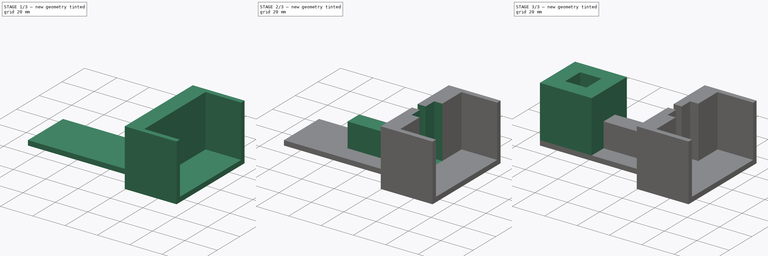
[diagram: build sequence overview — one tinted view per stage of 3, left to right]
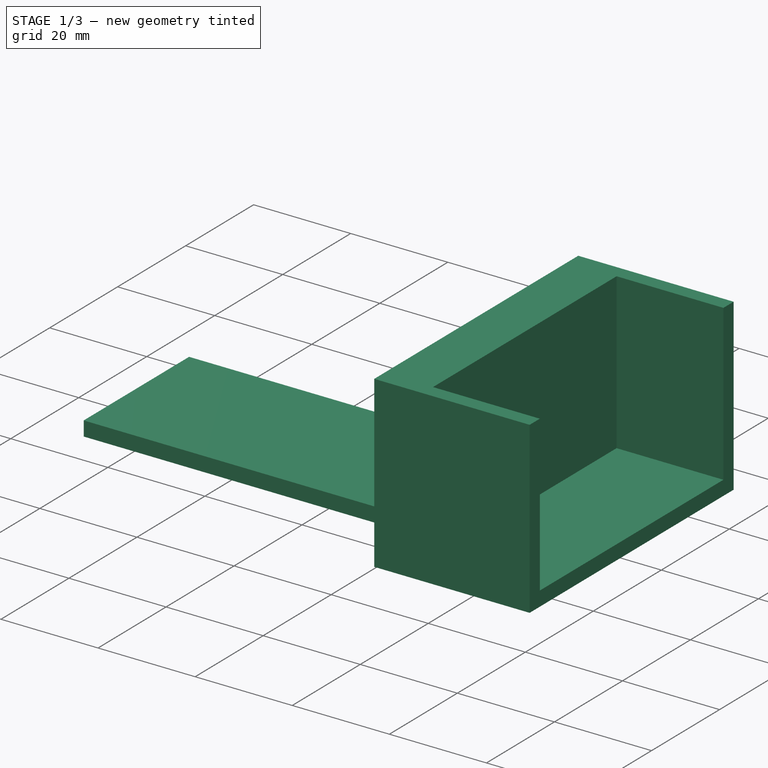
[diagram: stage 1 of 3 — iso view after this stage's code; geometry added in this stage tinted green]
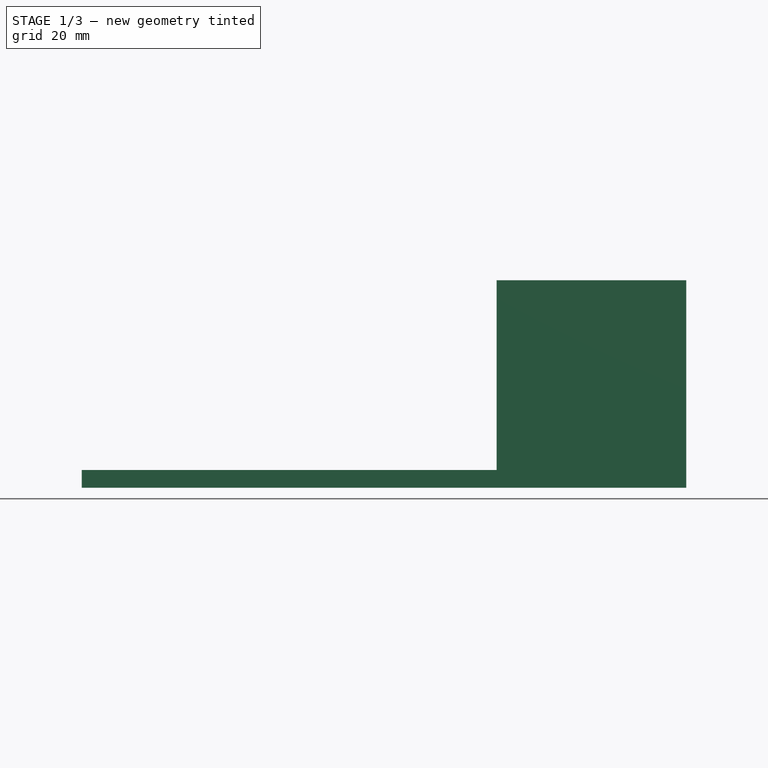
[diagram: stage 1 of 3 — front view after this stage's code; geometry added in this stage tinted green]
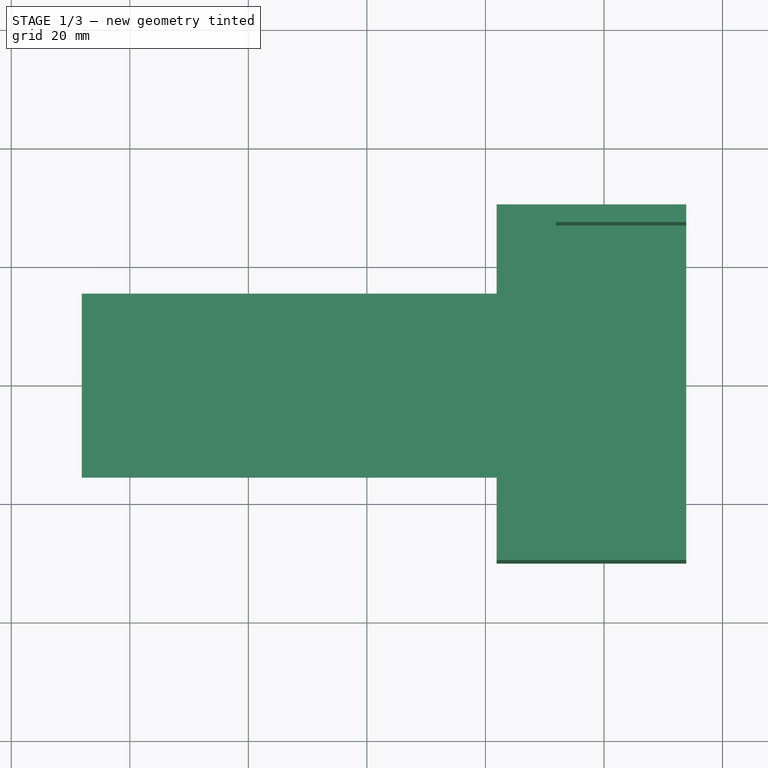
[diagram: stage 1 of 3 — top view after this stage's code; geometry added in this stage tinted green]
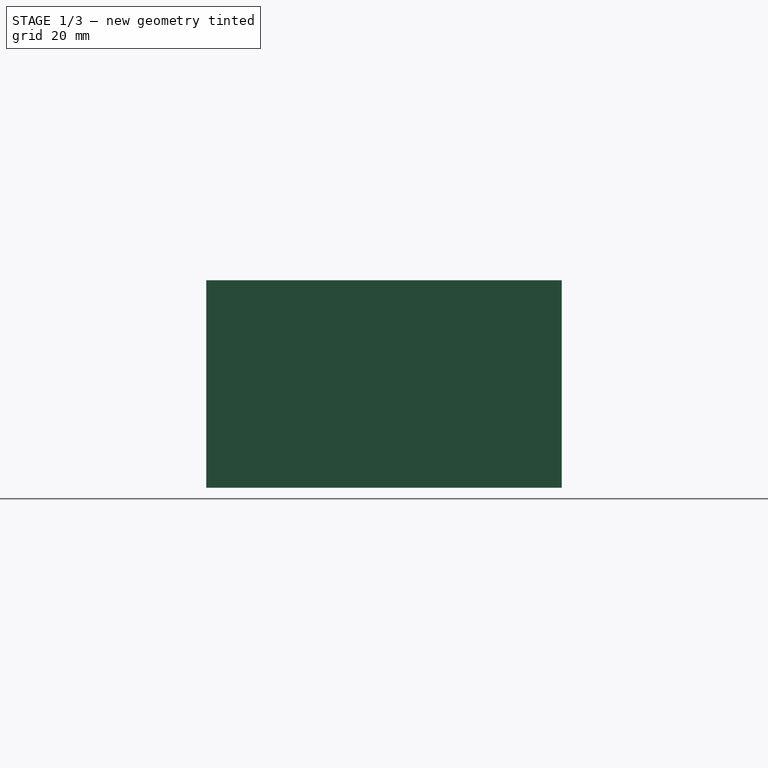
[diagram: stage 1 of 3 — right view after this stage's code; geometry added in this stage tinted green]
FCSTD DOCUMENT  (FreeCAD 0.21R33694 (Git))
Label: Frame
License: All rights reserved
LicenseURL: http://en.wikipedia.org/wiki/All_rights_reserved
objects: Sketcher::SketchObject×8, PartDesign::Pad×4, PartDesign::Pocket×4, Spreadsheet::Sheet×1, PartDesign::Body×1
note: 25 computed .brp shape members not serialized (recipe doc carries the construction recipe); baked Part::Feature solids carry a one-line shape summary decoded from their .brp

FEATURE [Spreadsheet::Sheet] Spreadsheet
  cells = A1='d_MagMag; B1(d_MagMag)==7 cm; A2='test_mag_side; B2(tms)==12 mm; A3='tollerance (%); B3(tl)=10
FEATURE [Sketcher::SketchObject] Sketch
  FullyConstrained = false
  MapMode = 5
  Support = -> [XY_Plane]
  expr: Constraints[13] = -Spreadsheet.tms / 2
  expr: Constraints[3] = Spreadsheet.d_MagMag + Spreadsheet.tms + 10 mm + 10 mm
  expr: Constraints[7] = Spreadsheet.tms / 2 + 10 mm
  expr: Constraints[9] = Spreadsheet.d_MagMag
  sketch-geometry (13):
    g0: LineSegment StartX=-48.1158 StartY=15.5 StartZ=0 EndX=21.8842 EndY=15.5 EndZ=0
    g1: LineSegment StartX=53.8842 StartY=15.5 StartZ=0 EndX=53.8842 EndY=-15.5 EndZ=0
    g2: LineSegment StartX=-48.1158 StartY=-15.5 StartZ=0 EndX=-48.1158 EndY=15.5 EndZ=0
    g3: GeomPoint X=-32.1158 Y=0 Z=0
    g4: GeomPoint X=37.8842 Y=0 Z=0
    g5: GeomPoint X=47.8842 Y=0 Z=0
    g6: LineSegment StartX=31.8842 StartY=24.4366 StartZ=0 EndX=31.8842 EndY=-24.4366 EndZ=0
    g7: LineSegment StartX=21.8842 StartY=30 StartZ=0 EndX=53.8842 EndY=30 EndZ=0
    g8: LineSegment StartX=53.8842 StartY=30 StartZ=0 EndX=53.8842 EndY=-30 EndZ=0
    g9: LineSegment StartX=53.8842 StartY=-30 StartZ=0 EndX=21.8842 EndY=-30 EndZ=0
    g10: LineSegment StartX=21.8842 StartY=-30 StartZ=0 EndX=21.8842 EndY=-15.5 EndZ=0
    g11: LineSegment StartX=21.8842 StartY=-15.5 StartZ=0 EndX=-48.1158 EndY=-15.5 EndZ=0
    g12: LineSegment StartX=21.8842 StartY=15.5 StartZ=0 EndX=21.8842 EndY=30 EndZ=0
  constraints (31):
    c: Coincident(g11,g2)
    c: Coincident(g2,g0)
    c: Vertical(g1)
    c: DistanceX(g0,g1) = 102
    c: DistanceY(g2,g2) = 31
    c: Symmetric(g11,g0,g-1)
    c: PointOnObject(g3,g-1)
    c: DistanceX(g0,g3) = 16
    c: PointOnObject(g4,g-1)
    c: DistanceX(g3,g4) = 70
    c: PointOnObject(g5,g-1)
    c: DistanceX(g4,g5) = 10
    c: Symmetric(g6,g6,g-1)
    c: DistanceX(g4,g6) = -6
    c: Coincident(g7,g8)
    c: Coincident(g8,g9)
    c: Coincident(g9,g10)
    c: Coincident(g12,g7)
    c: Horizontal(g7)
    c: Horizontal(g9)
    c: Vertical(g8)
    c: Symmetric(g7,g9,g-1)
    c: DistanceY(g10,g12) = 60
    c: DistanceX(g7,g6) = 10
    c: DistanceX(g1,g7) = 0
    c: Coincident(g10,g11)
    c: Coincident(g12,g0)
    c: Perpendicular(g12,g0)
    c: Perpendicular(g11,g10)
    c: Perpendicular(g10,g9)
    c: Perpendicular(g7,g12)
FEATURE [PartDesign::Pad] Pad
  Direction = (0,0,1)
  Length = 3
  Length2 = 10
  Profile = -> Sketch
  ReferenceAxis = -> Sketch [N_Axis]
  Type = 0
FEATURE [Sketcher::SketchObject] Sketch001
  ExternalGeometry = -> [Pad]
  FullyConstrained = true
  MapMode = 5
  Placement = pos=(0,0,3) rot=(0,0,1;0rad)
  Support = -> [Pad]
  sketch-geometry (4):
    g0: LineSegment StartX=21.8842 StartY=30 StartZ=0 EndX=53.8842 EndY=30 EndZ=0
    g1: LineSegment StartX=53.8842 StartY=30 StartZ=0 EndX=53.8842 EndY=-30 EndZ=0
    g2: LineSegment StartX=53.8842 StartY=-30 StartZ=0 EndX=21.8842 EndY=-30 EndZ=0
    g3: LineSegment StartX=21.8842 StartY=-30 StartZ=0 EndX=21.8842 EndY=30 EndZ=0
  constraints (10):
    c: Coincident(g0,g1)
    c: Coincident(g1,g2)
    c: Coincident(g2,g3)
    c: Coincident(g3,g0)
    c: Horizontal(g0)
    c: Horizontal(g2)
    c: Vertical(g1)
    c: Vertical(g3)
    c: Coincident(g0,g-4)
    c: Coincident(g1,g-6)
FEATURE [PartDesign::Pad] Pad001
  BaseFeature = -> Pad
  Direction = (0,0,1)
  Length = 32
  Length2 = 10
  Profile = -> Sketch001
  ReferenceAxis = -> Sketch001 [N_Axis]
  Type = 0
FEATURE [Sketcher::SketchObject] Sketch002
  ExternalGeometry = -> [Pad001]
  FullyConstrained = true
  MapMode = 5
  Placement = pos=(0,0,35) rot=(0,0,1;0rad)
  Support = -> [Pad001]
  sketch-geometry (4):
    g0: LineSegment StartX=53.8842 StartY=27 StartZ=0 EndX=31.8842 EndY=27 EndZ=0
    g1: LineSegment StartX=31.8842 StartY=27 StartZ=0 EndX=31.8842 EndY=-27 EndZ=0
    g2: LineSegment StartX=31.8842 StartY=-27 StartZ=0 EndX=53.8842 EndY=-27 EndZ=0
    g3: LineSegment StartX=53.8842 StartY=-27 StartZ=0 EndX=53.8842 EndY=27 EndZ=0
  constraints (12):
    c: Coincident(g0,g1)
    c: Coincident(g1,g2)
    c: Coincident(g2,g3)
    c: Coincident(g3,g0)
    c: Horizontal(g0)
    c: Horizontal(g2)
    c: Vertical(g1)
    c: Vertical(g3)
    c: PointOnObject(g0,g-7)
    c: DistanceY(g0,g-5) = 3
    c: DistanceY(g-8,g1) = 3
    c: DistanceX(g-8,g1) = 10
FEATURE [PartDesign::Pocket] Pocket
  BaseFeature = -> Pad001
  Direction = (0,0,-1)
  Length = 32
  Length2 = 5
  Profile = -> Sketch002
  ReferenceAxis = -> Sketch002 [N_Axis]
  Type = 0
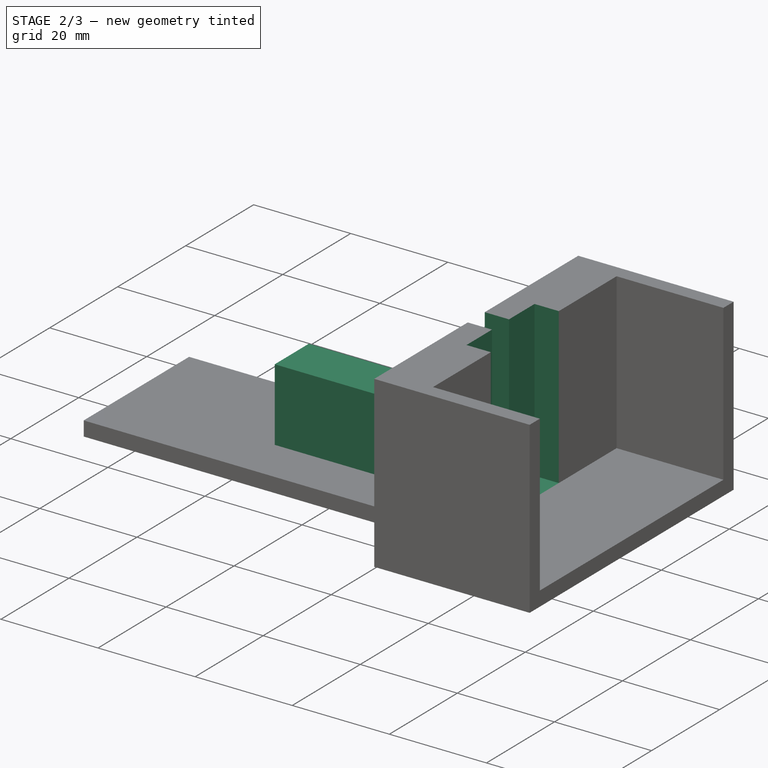
[diagram: stage 2 of 3 — iso view after this stage's code; geometry added in this stage tinted green]
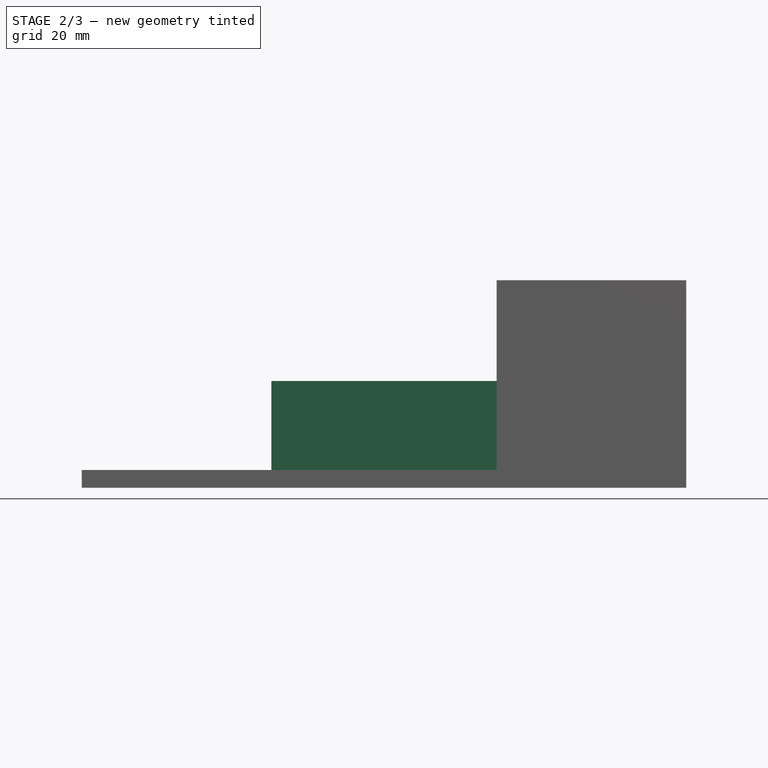
[diagram: stage 2 of 3 — front view after this stage's code; geometry added in this stage tinted green]
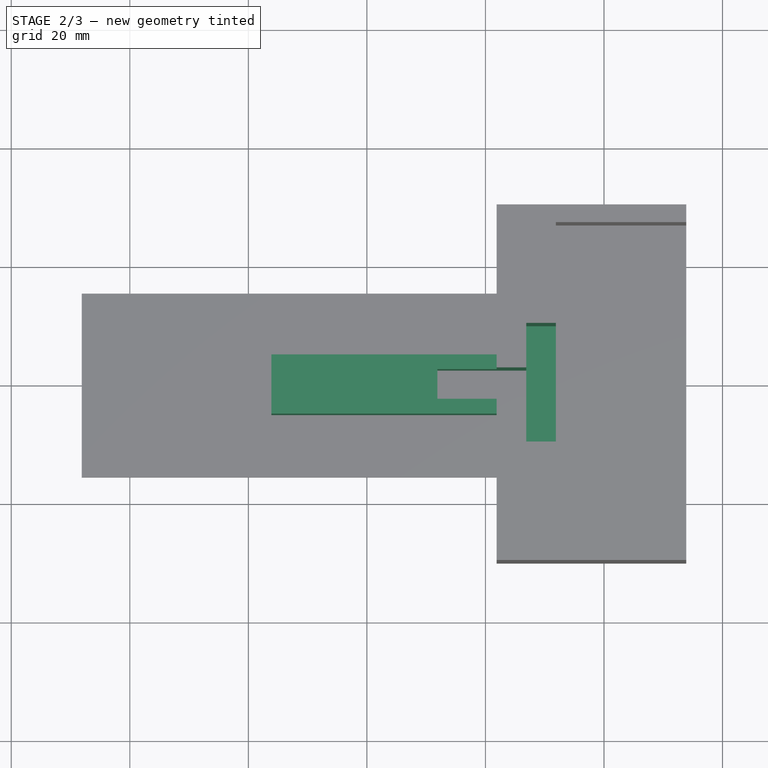
[diagram: stage 2 of 3 — top view after this stage's code; geometry added in this stage tinted green]
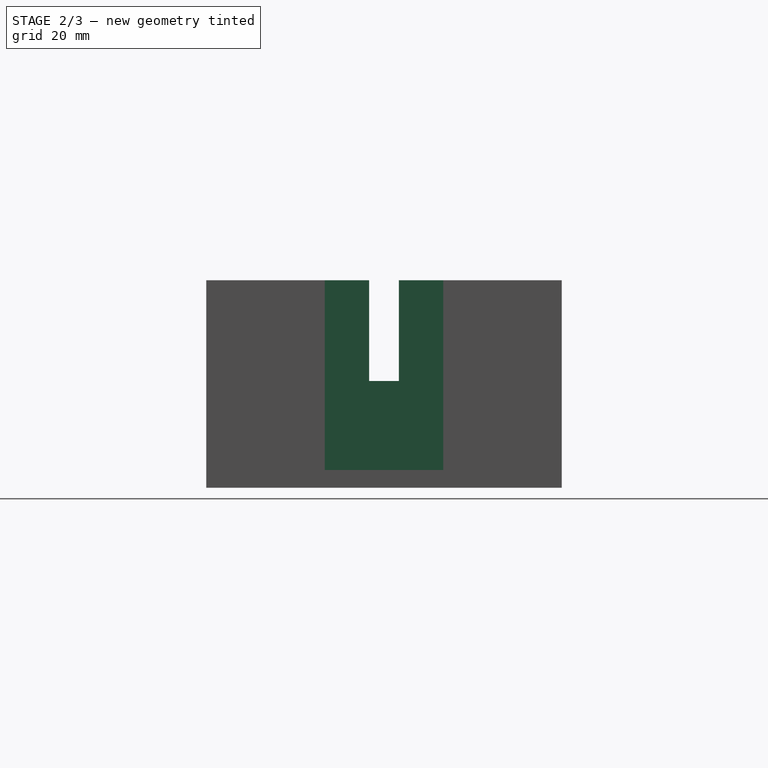
[diagram: stage 2 of 3 — right view after this stage's code; geometry added in this stage tinted green]
FEATURE [Sketcher::SketchObject] Sketch003
  ExternalGeometry = -> [Pocket]
  FullyConstrained = true
  MapMode = 5
  Placement = pos=(0,0,3) rot=(0,0,1;0rad)
  Support = -> [Pocket]
  expr: Constraints[6] = 20 mm + Spreadsheet.tms
  sketch-geometry (4):
    g0: LineSegment StartX=21.8842 StartY=5 StartZ=0 EndX=-16.1158 EndY=5 EndZ=0
    g1: LineSegment StartX=-16.1158 StartY=5 StartZ=0 EndX=-16.1158 EndY=-5 EndZ=0
    g2: LineSegment StartX=-16.1158 StartY=-5 StartZ=0 EndX=21.8842 EndY=-5 EndZ=0
    g3: LineSegment StartX=21.8842 StartY=5 StartZ=0 EndX=21.8842 EndY=-5 EndZ=0
  constraints (11):
    c: Coincident(g0,g1)
    c: Coincident(g1,g2)
    c: Horizontal(g0)
    c: Horizontal(g2)
    c: Symmetric(g0,g1,g-1)
    c: DistanceY(g1,g1) = 10
    c: DistanceX(g-4,g0) = 32
    c: Coincident(g3,g0)
    c: Coincident(g3,g2)
    c: Vertical(g3)
    c: DistanceX(g0,g-5) = 0
FEATURE [PartDesign::Pad] Pad002
  BaseFeature = -> Pocket
  Direction = (0,0,1)
  Length = 15
  Length2 = 10
  Profile = -> Sketch003
  ReferenceAxis = -> Sketch003 [N_Axis]
  Type = 0
FEATURE [Sketcher::SketchObject] Sketch004
  ExternalGeometry = -> [Pad002]
  FullyConstrained = true
  MapMode = 5
  Placement = pos=(0,0,35) rot=(0,0,1;0rad)
  Support = -> [Pad002]
  expr: Constraints[13] = Spreadsheet.tms + 8 mm
  sketch-geometry (8):
    g0: LineSegment StartX=31.8842 StartY=10 StartZ=0 EndX=31.8842 EndY=-10 EndZ=0
    g1: LineSegment StartX=31.8842 StartY=-10 StartZ=0 EndX=26.8842 EndY=-10 EndZ=0
    g2: LineSegment StartX=26.8842 StartY=-10 StartZ=0 EndX=26.8842 EndY=-2.5 EndZ=0
    g3: LineSegment StartX=26.8842 StartY=-2.5 StartZ=0 EndX=11.8842 EndY=-2.5 EndZ=0
    g4: LineSegment StartX=11.8842 StartY=-2.5 StartZ=0 EndX=11.8842 EndY=2.5 EndZ=0
    g5: LineSegment StartX=11.8842 StartY=2.5 StartZ=0 EndX=26.8842 EndY=2.5 EndZ=0
    g6: LineSegment StartX=26.8842 StartY=2.5 StartZ=0 EndX=26.8842 EndY=10 EndZ=0
    g7: LineSegment StartX=26.8842 StartY=10 StartZ=0 EndX=31.8842 EndY=10 EndZ=0
  constraints (22):
    c: PointOnObject(g0,g-3)
    c: Coincident(g1,g0)
    c: Horizontal(g1)
    c: Coincident(g2,g1)
    c: Vertical(g2)
    c: Coincident(g3,g2)
    c: Horizontal(g3)
    c: Coincident(g4,g3)
    c: Horizontal(g5)
    c: Coincident(g6,g5)
    c: Vertical(g6)
    c: Coincident(g7,g6)
    c: Coincident(g0,g7)
    c: DistanceY(g0,g0) = 20
    c: DistanceX(g1,g1) = 5
    c: Perpendicular(g0,g7)
    c: DistanceX(g7,g7) = 5
    c: Coincident(g4,g5)
    c: DistanceY(g4,g4) = 5
    c: Symmetric(g0,g0,g-1)
    c: Symmetric(g3,g4,g-1)
    c: DistanceX(g5,g5) = 15
FEATURE [PartDesign::Pocket] Pocket001
  BaseFeature = -> Pad002
  Direction = (0,0,-1)
  Length = 0
  Length2 = 5
  Profile = -> Sketch004
  ReferenceAxis = -> Sketch004 [N_Axis]
  Type = 3
  UpToFace = -> Pad002 [Face20]
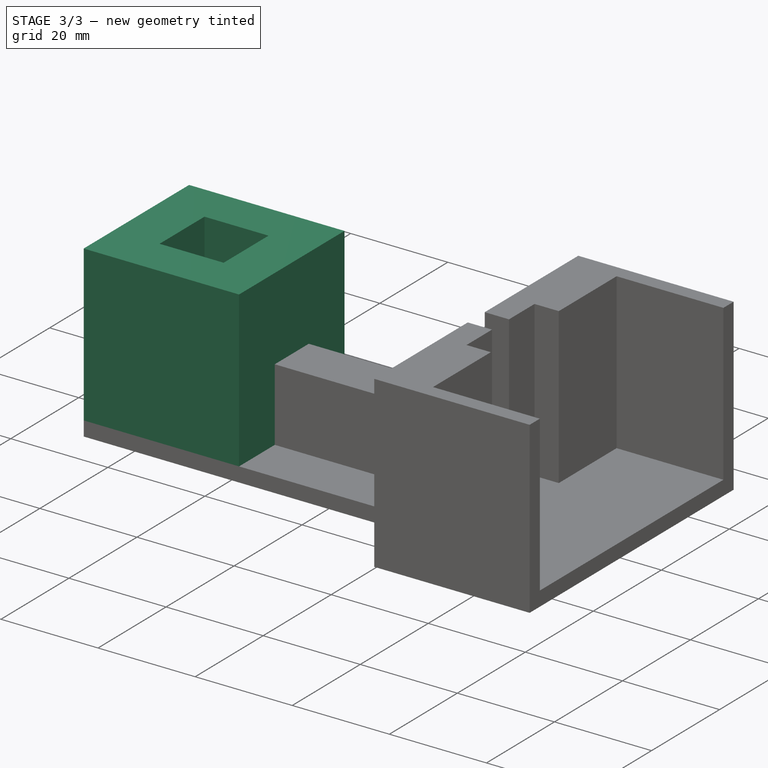
[diagram: stage 3 of 3 — iso view after this stage's code; geometry added in this stage tinted green]
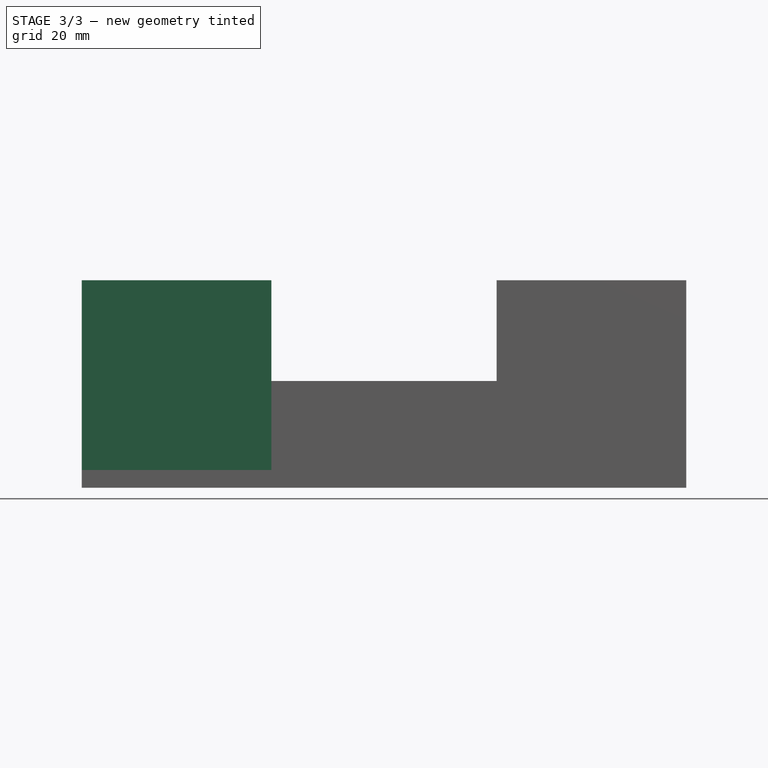
[diagram: stage 3 of 3 — front view after this stage's code; geometry added in this stage tinted green]
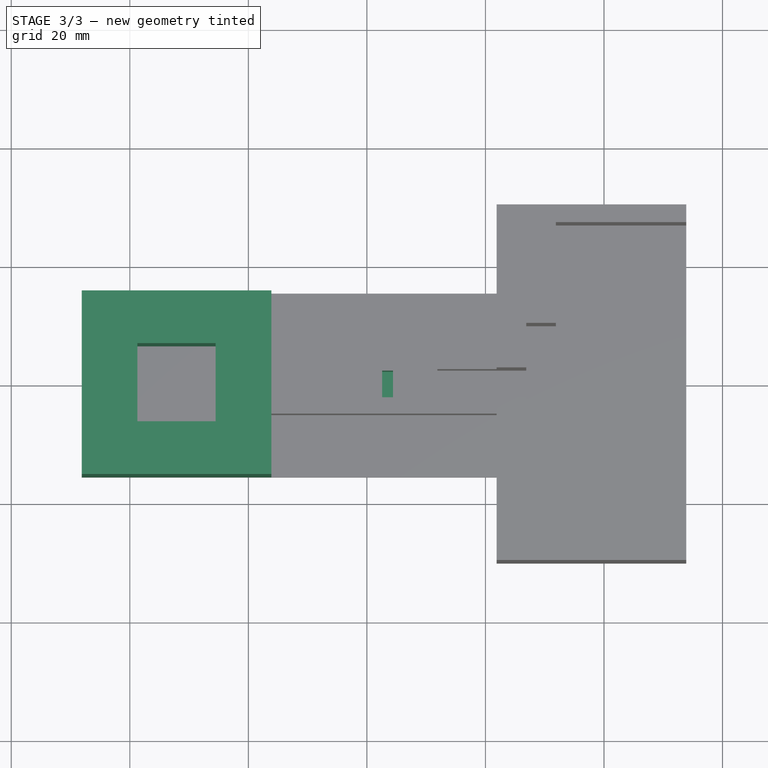
[diagram: stage 3 of 3 — top view after this stage's code; geometry added in this stage tinted green]
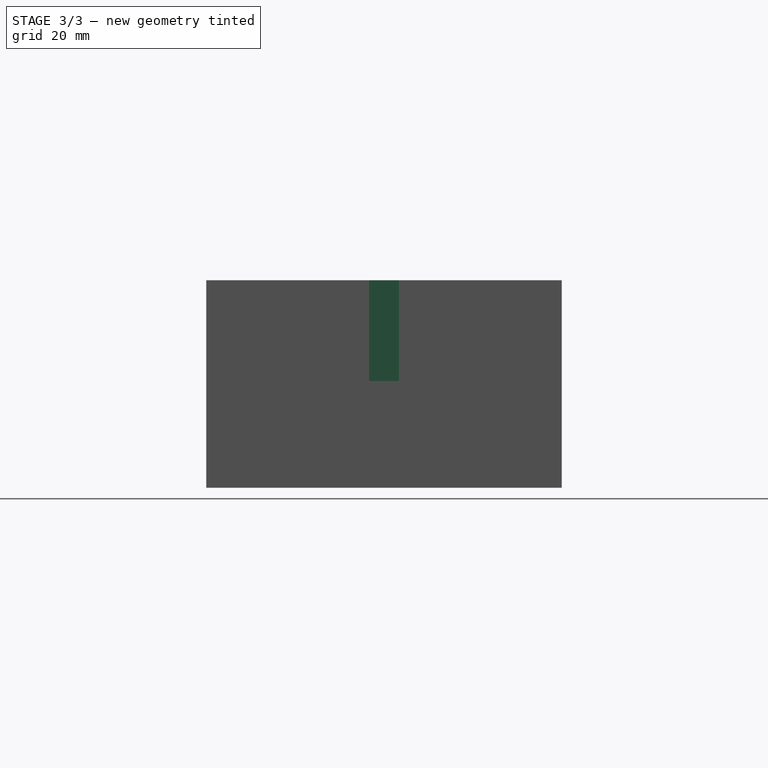
[diagram: stage 3 of 3 — right view after this stage's code; geometry added in this stage tinted green]
FEATURE [Sketcher::SketchObject] Sketch005
  ExternalGeometry = -> [Pocket001]
  FullyConstrained = true
  MapMode = 5
  Placement = pos=(0,0,3) rot=(0,0,1;0rad)
  Support = -> [Pocket001]
  sketch-geometry (4):
    g0: LineSegment StartX=-48.1158 StartY=15.5 StartZ=0 EndX=-16.1158 EndY=15.5 EndZ=0
    g1: LineSegment StartX=-16.1158 StartY=15.5 StartZ=0 EndX=-16.1158 EndY=-15.5 EndZ=0
    g2: LineSegment StartX=-16.1158 StartY=-15.5 StartZ=0 EndX=-48.1158 EndY=-15.5 EndZ=0
    g3: LineSegment StartX=-48.1158 StartY=-15.5 StartZ=0 EndX=-48.1158 EndY=15.5 EndZ=0
  constraints (11):
    c: Coincident(g0,g1)
    c: Coincident(g1,g2)
    c: Coincident(g2,g3)
    c: Coincident(g3,g0)
    c: Horizontal(g0)
    c: Horizontal(g2)
    c: Vertical(g1)
    c: Vertical(g3)
    c: Coincident(g0,g-6)
    c: PointOnObject(g1,g-4)
    c: DistanceX(g-3,g1) = 0
FEATURE [PartDesign::Pad] Pad003
  BaseFeature = -> Pocket001
  Direction = (0,0,1)
  Length = 32
  Length2 = 10
  Profile = -> Sketch005
  ReferenceAxis = -> Sketch005 [N_Axis]
  Type = 0
FEATURE [Sketcher::SketchObject] Sketch006
  ExternalGeometry = -> [Pad003]
  FullyConstrained = false
  MapMode = 5
  Placement = pos=(0,0,35) rot=(0,0,1;0rad)
  Support = -> [Pad003]
  expr: Constraints[11] = Spreadsheet.tms * (1 + Spreadsheet.tl / 100)
  expr: Constraints[12] = Spreadsheet.tms * (1 + Spreadsheet.tl / 100)
  sketch-geometry (5):
    g0: LineSegment StartX=-38.7158 StartY=6.6 StartZ=0 EndX=-25.5158 EndY=6.6 EndZ=0
    g1: LineSegment StartX=-25.5158 StartY=6.6 StartZ=0 EndX=-25.5158 EndY=-6.6 EndZ=0
    g2: LineSegment StartX=-25.5158 StartY=-6.6 StartZ=0 EndX=-38.7158 EndY=-6.6 EndZ=0
    g3: LineSegment StartX=-38.7158 StartY=-6.6 StartZ=0 EndX=-38.7158 EndY=6.6 EndZ=0
    g4: LineSegment StartX=-32.1158 StartY=33.3613 StartZ=0 EndX=-32.1158 EndY=-33.3613 EndZ=0
  constraints (13):
    c: Coincident(g0,g1)
    c: Coincident(g1,g2)
    c: Coincident(g2,g3)
    c: Coincident(g3,g0)
    c: Horizontal(g0)
    c: Horizontal(g2)
    c: Vertical(g3)
    c: Symmetric(g4,g4,g-1)
    c: Symmetric(g-7,g-7,g4)
    c: Symmetric(g0,g0,g4)
    c: Symmetric(g0,g1,g-1)
    c: DistanceX(g0,g0) = 13.2
    c: DistanceY(g1,g1) = 13.2
FEATURE [PartDesign::Pocket] Pocket002
  BaseFeature = -> Pad003
  Direction = (0,0,-1)
  Length = 32
  Length2 = 5
  Profile = -> Sketch006
  ReferenceAxis = -> Sketch006 [N_Axis]
  Type = 0
FEATURE [Sketcher::SketchObject] Sketch007
  ExternalGeometry = -> [Pocket002]
  FullyConstrained = false
  MapMode = 5
  Placement = pos=(0,0,18) rot=(0,0,1;0rad)
  Support = -> [Pocket002]
  expr: Constraints[10] = 4.09 mm * (1 + Spreadsheet.tl / 100)
  expr: Constraints[11] = 1.68 mm * (1 + Spreadsheet.tl / 100)
  expr: Constraints[1] = 35 mm - Spreadsheet.tms / 2
  sketch-geometry (5):
    g0: LineSegment StartX=3.48417 StartY=27.0868 StartZ=0 EndX=3.48417 EndY=-27.0868 EndZ=0
    g1: LineSegment StartX=2.56017 StartY=2.2495 StartZ=0 EndX=4.40817 EndY=2.2495 EndZ=0
    g2: LineSegment StartX=4.40817 StartY=2.2495 StartZ=0 EndX=4.40817 EndY=-2.2495 EndZ=0
    g3: LineSegment StartX=4.40817 StartY=-2.2495 StartZ=0 EndX=2.56017 EndY=-2.2495 EndZ=0
    g4: LineSegment StartX=2.56017 StartY=-2.2495 StartZ=0 EndX=2.56017 EndY=2.2495 EndZ=0
  constraints (12):
    c: Symmetric(g0,g0,g-1)
    c: DistanceX(g-3,g0) = 29
    c: Coincident(g1,g2)
    c: Coincident(g2,g3)
    c: Coincident(g3,g4)
    c: Coincident(g4,g1)
    c: Horizontal(g3)
    c: Vertical(g4)
    c: Symmetric(g1,g1,g0)
    c: Symmetric(g2,g1,g-1)
    c: DistanceY(g2,g2) = 4.499
    c: DistanceX(g1,g1) = 1.848
FEATURE [PartDesign::Pocket] Pocket003
  BaseFeature = -> Pocket002
  Direction = (0,0,-1)
  Length = 10.55
  Length2 = 5
  Profile = -> Sketch007
  ReferenceAxis = -> Sketch007 [N_Axis]
  Type = 0
  expr: Length = 15 mm - 6 mm + 3.1 mm / 2
FEATURE [PartDesign::Body] Body  label="TestMagnetSupport"
  Group = -> [Sketch,Pad,Sketch001,Pad001,Sketch002,Pocket,Sketch003,Pad002,Sketch004,Pocket001,Sketch005,Pad003,Sketch006,Pocket002,Sketch007,Pocket003]
  Origin = -> Origin
  Tip = -> Pocket003
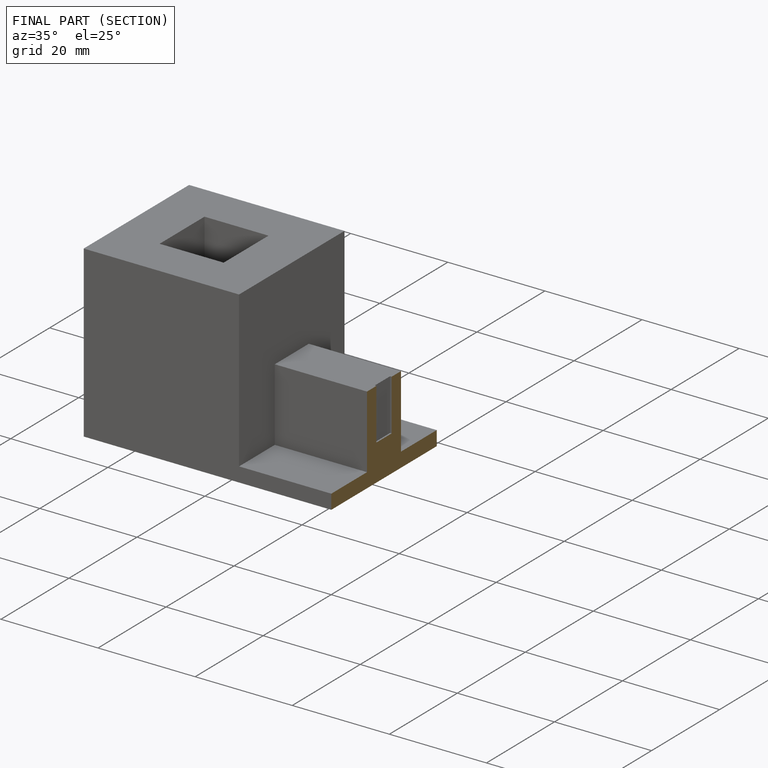
[diagram: finished part — half-section view (interior)]
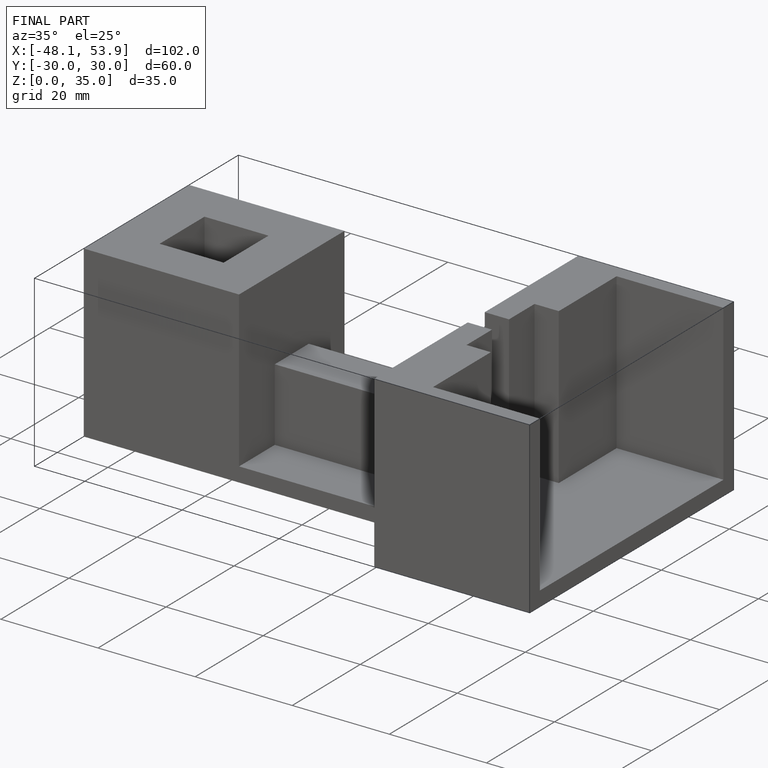
[diagram: finished part — iso view with bounding-box wireframe]
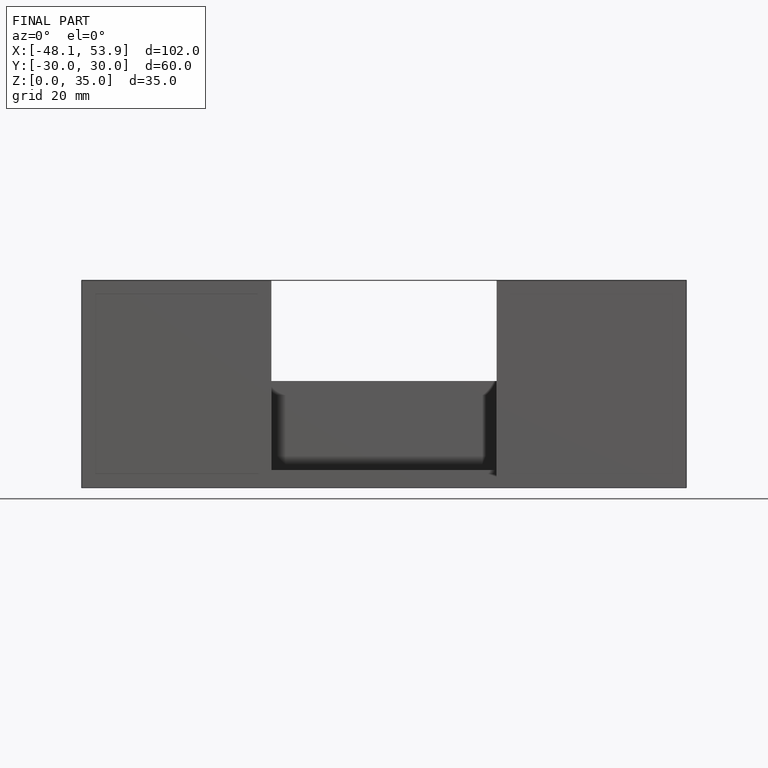
[diagram: finished part — front view with bounding-box wireframe]
